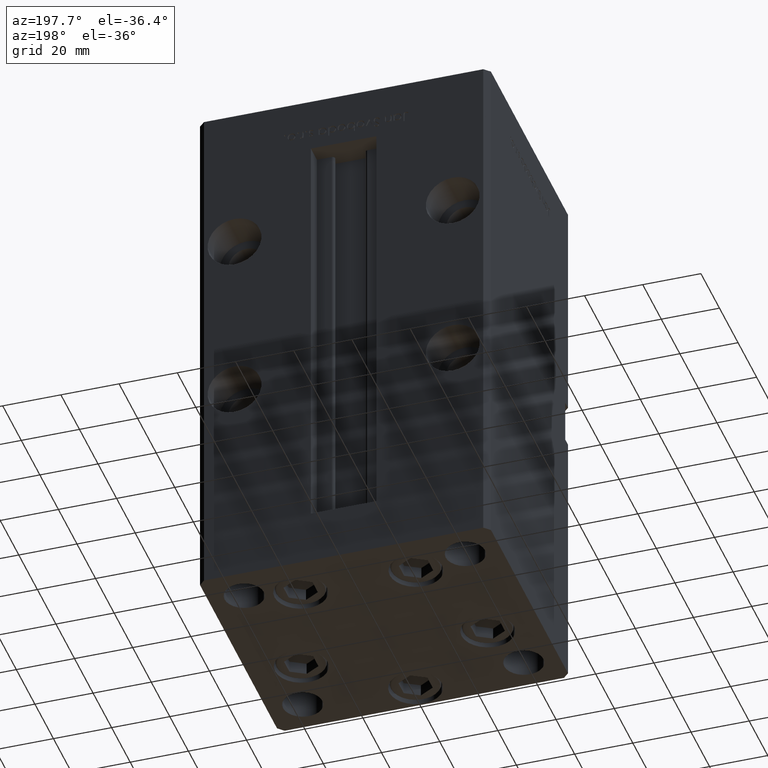
[diagram: clean part render]
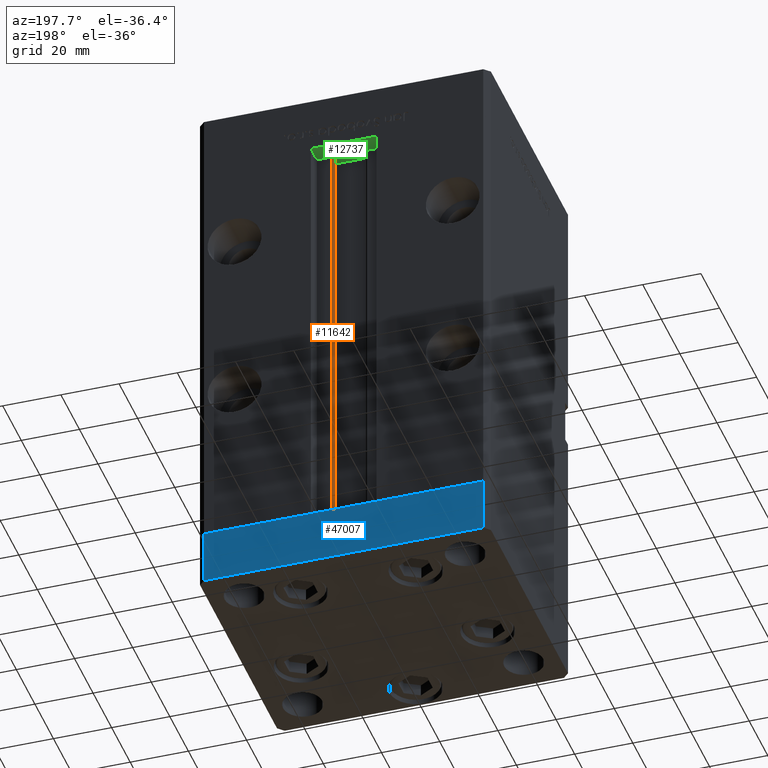
[diagram: same view with three faces highlighted in distinct colors, each labeled with its STEP entity id]
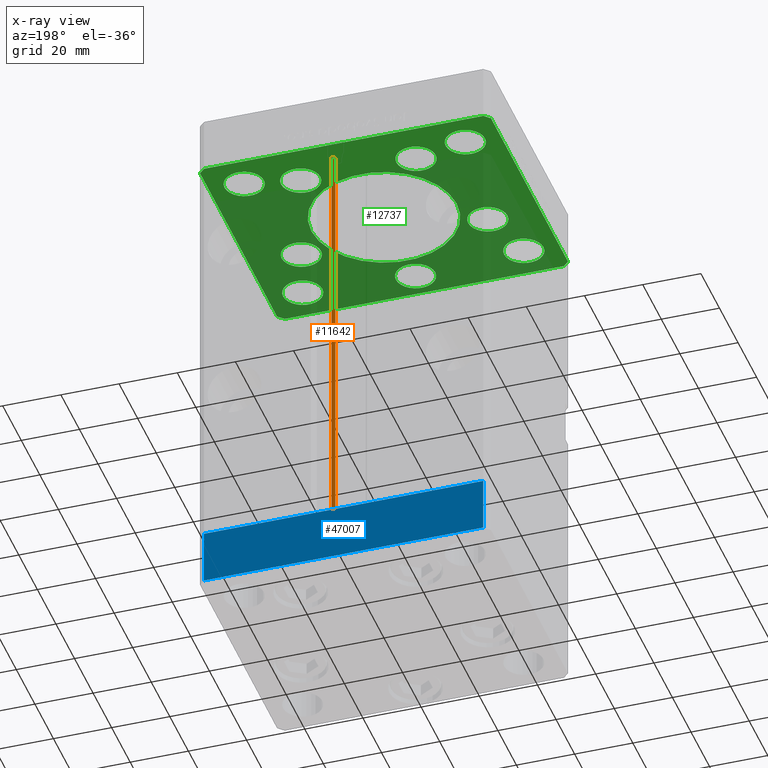
[diagram: x-ray of the same camera — body ghosted, the three highlighted faces saturated]
A machine part, auxiliary view with three faces highlighted in distinct colors.
The next image is the same camera in x-ray (body ghosted, the three faces saturated) — at least one of them is partly hidden behind the body in this view.
Their STEP definitions:

[orange] entity #11642 — the highlighted cylindrical surface (edge-blend (fillet) strip) has radius 0.9333 mm, axis along (0, 0, 1).
#4016 = ORIENTED_EDGE ( 'NONE', *, *, #37850, .T. ) ;
#4766 = DIRECTION ( 'NONE',  ( 0.000000000000000000, 0.000000000000000000, -1.000000000000000000 ) ) ;
#5271 = CARTESIAN_POINT ( 'NONE',  ( 6.183333333333996151, 37.00000000000000000, 0.000000000000000000 ) ) ;
#5412 = CIRCLE ( 'NONE', #49193, 0.9333333333339999260 ) ;
#11284 = VERTEX_POINT ( 'NONE', #11327 ) ;
#11327 = CARTESIAN_POINT ( 'NONE',  ( 6.183333333333996151, 37.00000000000000000, 148.5000000000000000 ) ) ;
#11642 = ADVANCED_FACE ( 'NONE', ( #30754 ), #46908, .T. ) ;
#14159 = CARTESIAN_POINT ( 'NONE',  ( 6.183333333333996151, 37.00000000000000000, 0.000000000000000000 ) ) ;
#14633 = DIRECTION ( 'NONE',  ( -0.000000000000000000, -0.000000000000000000, 1.000000000000000000 ) ) ;
#15650 = ORIENTED_EDGE ( 'NONE', *, *, #41682, .F. ) ;
#17659 = LINE ( 'NONE', #14159, #30551 ) ;
#22427 = LINE ( 'NONE', #31302, #24644 ) ;
#22612 = CARTESIAN_POINT ( 'NONE',  ( 5.375042956467946276, 35.59999999999899245, 148.5000000000000000 ) ) ;
#24638 = CIRCLE ( 'NONE', #48642, 0.9333333333339999260 ) ;
#24644 = VECTOR ( 'NONE', #14633, 1000.000000000000000 ) ;
#25415 = EDGE_CURVE ( 'NONE', #27281, #11284, #5412, .T. ) ;
#26900 = CARTESIAN_POINT ( 'NONE',  ( 6.183333333333996151, 36.06666666666599497, 0.000000000000000000 ) ) ;
#27281 = VERTEX_POINT ( 'NONE', #22612 ) ;
#28117 = EDGE_LOOP ( 'NONE', ( #35070, #15650, #4016, #50537 ) ) ;
#28677 = DIRECTION ( 'NONE',  ( 1.000000000000000000, 0.000000000000000000, 0.000000000000000000 ) ) ;
#30551 = VECTOR ( 'NONE', #34077, 1000.000000000000000 ) ;
#30754 = FACE_OUTER_BOUND ( 'NONE', #28117, .T. ) ;
#31019 = CARTESIAN_POINT ( 'NONE',  ( 6.183333333333996151, 36.06666666666599497, 0.000000000000000000 ) ) ;
#31302 = CARTESIAN_POINT ( 'NONE',  ( 5.375042956467944499, 35.59999999999899245, 0.000000000000000000 ) ) ;
#31950 = AXIS2_PLACEMENT_3D ( 'NONE', #31019, #47440, #51726 ) ;
#34077 = DIRECTION ( 'NONE',  ( -0.000000000000000000, -0.000000000000000000, 1.000000000000000000 ) ) ;
#35070 = ORIENTED_EDGE ( 'NONE', *, *, #39865, .F. ) ;
#37850 = EDGE_CURVE ( 'NONE', #50606, #27281, #22427, .T. ) ;
#39865 = EDGE_CURVE ( 'NONE', #41783, #11284, #17659, .T. ) ;
#41599 = CARTESIAN_POINT ( 'NONE',  ( 6.183333333333996151, 36.06666666666599497, 148.5000000000000000 ) ) ;
#41682 = EDGE_CURVE ( 'NONE', #50606, #41783, #24638, .T. ) ;
#41783 = VERTEX_POINT ( 'NONE', #5271 ) ;
#44628 = CARTESIAN_POINT ( 'NONE',  ( 5.375042956467944499, 35.59999999999899245, 0.000000000000000000 ) ) ;
#46908 = CYLINDRICAL_SURFACE ( 'NONE', #31950, 0.9333333333339999260 ) ;
#47440 = DIRECTION ( 'NONE',  ( -0.000000000000000000, -0.000000000000000000, 1.000000000000000000 ) ) ;
#48642 = AXIS2_PLACEMENT_3D ( 'NONE', #26900, #51340, #28677 ) ;
#48854 = DIRECTION ( 'NONE',  ( 1.000000000000000000, 0.000000000000000000, 0.000000000000000000 ) ) ;
#49193 = AXIS2_PLACEMENT_3D ( 'NONE', #41599, #4766, #48854 ) ;
#50537 = ORIENTED_EDGE ( 'NONE', *, *, #25415, .T. ) ;
#50606 = VERTEX_POINT ( 'NONE', #44628 ) ;
#51340 = DIRECTION ( 'NONE',  ( -0.000000000000000000, -0.000000000000000000, -1.000000000000000000 ) ) ;
#51726 = DIRECTION ( 'NONE',  ( 1.000000000000000000, 0.000000000000000000, 0.000000000000000000 ) ) ;

[blue] entity #47007 — the highlighted planar face has unit normal (-0, 1, 0).
#378 = ORIENTED_EDGE ( 'NONE', *, *, #43446, .F. ) ;
#2927 = FACE_OUTER_BOUND ( 'NONE', #50328, .T. ) ;
#3226 = CARTESIAN_POINT ( 'NONE',  ( 47.99999999999990763, 43.50000000000000000, 0.000000000000000000 ) ) ;
#4743 = CARTESIAN_POINT ( 'NONE',  ( -48.00000000000000711, 43.49999999999996447, -19.00000000000000000 ) ) ;
#4911 = DIRECTION ( 'NONE',  ( 0.000000000000000000, 0.000000000000000000, 1.000000000000000000 ) ) ;
#6416 = ORIENTED_EDGE ( 'NONE', *, *, #40296, .F. ) ;
#6443 = DIRECTION ( 'NONE',  ( 0.000000000000000000, 0.000000000000000000, 1.000000000000000000 ) ) ;
#10715 = DIRECTION ( 'NONE',  ( -1.000000000000000000, -3.614007241618350743E-16, 0.000000000000000000 ) ) ;
#10765 = DIRECTION ( 'NONE',  ( -1.000000000000000000, -3.614007241618350743E-16, 0.000000000000000000 ) ) ;
#10933 = VERTEX_POINT ( 'NONE', #36450 ) ;
#11241 = PLANE ( 'NONE',  #25629 ) ;
#11703 = CARTESIAN_POINT ( 'NONE',  ( 47.99999999999990763, 43.50000000000000000, 0.000000000000000000 ) ) ;
#13939 = DIRECTION ( 'NONE',  ( -1.000000000000000000, -3.614007241618350743E-16, 0.000000000000000000 ) ) ;
#14517 = CARTESIAN_POINT ( 'NONE',  ( 47.99999999999990763, 43.50000000000000000, -19.00000000000000000 ) ) ;
#19569 = DIRECTION ( 'NONE',  ( -3.614007241618350743E-16, 1.000000000000000000, 0.000000000000000000 ) ) ;
#21259 = VERTEX_POINT ( 'NONE', #4743 ) ;
#22118 = VERTEX_POINT ( 'NONE', #43768 ) ;
#23374 = LINE ( 'NONE', #34945, #46057 ) ;
#25554 = VECTOR ( 'NONE', #13939, 1000.000000000000000 ) ;
#25607 = LINE ( 'NONE', #36896, #32189 ) ;
#25629 = AXIS2_PLACEMENT_3D ( 'NONE', #47556, #19569, #10715 ) ;
#27428 = VECTOR ( 'NONE', #10765, 1000.000000000000000 ) ;
#30626 = ORIENTED_EDGE ( 'NONE', *, *, #32612, .T. ) ;
#32134 = LINE ( 'NONE', #11703, #25554 ) ;
#32189 = VECTOR ( 'NONE', #4911, 1000.000000000000000 ) ;
#32612 = EDGE_CURVE ( 'NONE', #21259, #22118, #25607, .T. ) ;
#34945 = CARTESIAN_POINT ( 'NONE',  ( 47.99999999999990763, 43.50000000000000000, -19.00000000000000000 ) ) ;
#35503 = LINE ( 'NONE', #14517, #27428 ) ;
#36450 = CARTESIAN_POINT ( 'NONE',  ( 47.99999999999990763, 43.50000000000000000, -19.00000000000000000 ) ) ;
#36896 = CARTESIAN_POINT ( 'NONE',  ( -48.00000000000000711, 43.49999999999996447, -19.00000000000000000 ) ) ;
#37997 = VERTEX_POINT ( 'NONE', #3226 ) ;
#40296 = EDGE_CURVE ( 'NONE', #10933, #37997, #23374, .T. ) ;
#43446 = EDGE_CURVE ( 'NONE', #37997, #22118, #32134, .T. ) ;
#43768 = CARTESIAN_POINT ( 'NONE',  ( -48.00000000000000711, 43.49999999999996447, 0.000000000000000000 ) ) ;
#45622 = ORIENTED_EDGE ( 'NONE', *, *, #49522, .T. ) ;
#46057 = VECTOR ( 'NONE', #6443, 1000.000000000000000 ) ;
#47007 = ADVANCED_FACE ( 'NONE', ( #2927 ), #11241, .T. ) ;
#47556 = CARTESIAN_POINT ( 'NONE',  ( 47.99999999999990763, 43.50000000000000000, -19.00000000000000000 ) ) ;
#49522 = EDGE_CURVE ( 'NONE', #10933, #21259, #35503, .T. ) ;
#50328 = EDGE_LOOP ( 'NONE', ( #378, #6416, #45622, #30626 ) ) ;

[green] entity #12737 — the highlighted planar face has unit normal (0, 0, 1).
#19 = LINE ( 'NONE', #16394, #33812 ) ;
#120 = CARTESIAN_POINT ( 'NONE',  ( 25.00000000000000000, 0.000000000000000000, -19.00000000000000000 ) ) ;
#170 = EDGE_CURVE ( 'NONE', #17145, #5081, #9966, .T. ) ;
#453 = ORIENTED_EDGE ( 'NONE', *, *, #5256, .F. ) ;
#546 = DIRECTION ( 'NONE',  ( -0.000000000000000000, -0.000000000000000000, -1.000000000000000000 ) ) ;
#585 = VERTEX_POINT ( 'NONE', #16324 ) ;
#793 = DIRECTION ( 'NONE',  ( 1.000000000000000000, 0.000000000000000000, 0.000000000000000000 ) ) ;
#1092 = ORIENTED_EDGE ( 'NONE', *, *, #8129, .F. ) ;
#1174 = EDGE_CURVE ( 'NONE', #14864, #52871, #28233, .T. ) ;
#1311 = ORIENTED_EDGE ( 'NONE', *, *, #170, .F. ) ;
#1316 = DIRECTION ( 'NONE',  ( 1.000000000000000000, 0.000000000000000000, 0.000000000000000000 ) ) ;
#1586 = CARTESIAN_POINT ( 'NONE',  ( 31.25000000000000000, 31.50000000000000000, -19.00000000000000000 ) ) ;
#1657 = CARTESIAN_POINT ( 'NONE',  ( -32.05550741379015989, -11.33333333333332860, -19.00000000000000000 ) ) ;
#1708 = EDGE_LOOP ( 'NONE', ( #10609, #15248 ) ) ;
#1780 = CIRCLE ( 'NONE', #43893, 6.749999999999999112 ) ;
#1912 = CARTESIAN_POINT ( 'NONE',  ( 19.82068048781374969, 27.62499999999998934, -19.00000000000000000 ) ) ;
#2415 = CARTESIAN_POINT ( 'NONE',  ( 38.80550741379015989, -11.33333333333332860, -19.00000000000000000 ) ) ;
#2428 = VERTEX_POINT ( 'NONE', #21727 ) ;
#3118 = CARTESIAN_POINT ( 'NONE',  ( -38.80550741379015989, -11.33333333333332860, -19.00000000000000000 ) ) ;
#3284 = CARTESIAN_POINT ( 'NONE',  ( 38.00000000000000000, 31.50000000000000000, -19.00000000000000000 ) ) ;
#3367 = CARTESIAN_POINT ( 'NONE',  ( 48.00000000000000711, -43.49999999999992184, -19.00000000000000000 ) ) ;
#3496 = CARTESIAN_POINT ( 'NONE',  ( -50.00000000000000711, 41.49999999999999289, -19.00000000000000000 ) ) ;
#3522 = AXIS2_PLACEMENT_3D ( 'NONE', #23131, #15855, #44384 ) ;
#3813 = AXIS2_PLACEMENT_3D ( 'NONE', #11908, #52245, #41217 ) ;
#4058 = CARTESIAN_POINT ( 'NONE',  ( -19.82068048781374969, 27.62499999999998934, -19.00000000000000000 ) ) ;
#4164 = DIRECTION ( 'NONE',  ( 0.7071067811865474617, 0.7071067811865474617, 0.000000000000000000 ) ) ;
#4223 = CARTESIAN_POINT ( 'NONE',  ( 32.05550741379015989, -11.33333333333332860, -19.00000000000000000 ) ) ;
#4284 = CIRCLE ( 'NONE', #34328, 6.749999999999999112 ) ;
#4299 = DIRECTION ( 'NONE',  ( 0.000000000000000000, -0.000000000000000000, -1.000000000000000000 ) ) ;
#5081 = VERTEX_POINT ( 'NONE', #14604 ) ;
#5256 = EDGE_CURVE ( 'NONE', #52900, #32170, #30047, .T. ) ;
#5410 = DIRECTION ( 'NONE',  ( -1.000000000000000000, 0.000000000000000000, 0.000000000000000000 ) ) ;
#5927 = DIRECTION ( 'NONE',  ( 0.000000000000000000, 0.000000000000000000, 1.000000000000000000 ) ) ;
#6057 = EDGE_LOOP ( 'NONE', ( #49906, #30299 ) ) ;
#6240 = CIRCLE ( 'NONE', #12271, 6.749999999999999112 ) ;
#6288 = CARTESIAN_POINT ( 'NONE',  ( 50.00000000000000000, -41.49999999999992895, -19.00000000000000000 ) ) ;
#6997 = AXIS2_PLACEMENT_3D ( 'NONE', #47148, #10840, #27252 ) ;
#7397 = CIRCLE ( 'NONE', #40901, 6.749999999999999112 ) ;
#7450 = EDGE_CURVE ( 'NONE', #14607, #13199, #22368, .T. ) ;
#7629 = ORIENTED_EDGE ( 'NONE', *, *, #7990, .F. ) ;
#7733 = VECTOR ( 'NONE', #26231, 999.9999999999998863 ) ;
#7813 = CIRCLE ( 'NONE', #3522, 6.749999999999999112 ) ;
#7990 = EDGE_CURVE ( 'NONE', #29458, #13462, #1780, .T. ) ;
#8129 = EDGE_CURVE ( 'NONE', #48376, #15848, #7813, .T. ) ;
#8268 = DIRECTION ( 'NONE',  ( -0.000000000000000000, -0.000000000000000000, -1.000000000000000000 ) ) ;
#8335 = DIRECTION ( 'NONE',  ( 8.360113137237620037E-17, -1.000000000000000000, 0.000000000000000000 ) ) ;
#8536 = CARTESIAN_POINT ( 'NONE',  ( 38.00000000000000711, -31.50000000000000711, -19.00000000000000000 ) ) ;
#8581 = EDGE_CURVE ( 'NONE', #21524, #16051, #26733, .T. ) ;
#8868 = DIRECTION ( 'NONE',  ( -1.000000000000000000, 0.000000000000000000, 0.000000000000000000 ) ) ;
#8912 = CARTESIAN_POINT ( 'NONE',  ( -38.00000000000000000, 31.50000000000000000, -19.00000000000000000 ) ) ;
#8973 = VERTEX_POINT ( 'NONE', #40347 ) ;
#9377 = DIRECTION ( 'NONE',  ( 0.000000000000000000, 0.000000000000000000, 1.000000000000000000 ) ) ;
#9401 = FACE_BOUND ( 'NONE', #34958, .T. ) ;
#9608 = CARTESIAN_POINT ( 'NONE',  ( -25.00000000000000000, 3.061616997868383043E-15, -19.00000000000000000 ) ) ;
#9773 = LINE ( 'NONE', #19167, #14048 ) ;
#9873 = DIRECTION ( 'NONE',  ( 0.7071067811865487940, -0.7071067811865463515, 0.000000000000000000 ) ) ;
#9917 = FACE_BOUND ( 'NONE', #6057, .T. ) ;
#9954 = CIRCLE ( 'NONE', #26278, 6.749999999999999112 ) ;
#9966 = LINE ( 'NONE', #18830, #25628 ) ;
#10253 = AXIS2_PLACEMENT_3D ( 'NONE', #18013, #5927, #26109 ) ;
#10354 = LINE ( 'NONE', #18946, #7733 ) ;
#10559 = VECTOR ( 'NONE', #4164, 1000.000000000000114 ) ;
#10579 = EDGE_CURVE ( 'NONE', #52871, #14864, #25053, .T. ) ;
#10609 = ORIENTED_EDGE ( 'NONE', *, *, #39795, .F. ) ;
#10810 = AXIS2_PLACEMENT_3D ( 'NONE', #33874, #25807, #13955 ) ;
#10840 = DIRECTION ( 'NONE',  ( 0.000000000000000000, -0.000000000000000000, -1.000000000000000000 ) ) ;
#11045 = CARTESIAN_POINT ( 'NONE',  ( 50.00000000000000000, -41.49999999999992895, -19.00000000000000000 ) ) ;
#11320 = AXIS2_PLACEMENT_3D ( 'NONE', #21726, #9377, #1316 ) ;
#11908 = CARTESIAN_POINT ( 'NONE',  ( 0.000000000000000000, 0.000000000000000000, -19.00000000000000000 ) ) ;
#12264 = DIRECTION ( 'NONE',  ( 1.000000000000000000, 0.000000000000000000, 0.000000000000000000 ) ) ;
#12271 = AXIS2_PLACEMENT_3D ( 'NONE', #40605, #4299, #793 ) ;
#12501 = EDGE_CURVE ( 'NONE', #31964, #24315, #38298, .T. ) ;
#12534 = VECTOR ( 'NONE', #22552, 1000.000000000000000 ) ;
#12632 = CARTESIAN_POINT ( 'NONE',  ( 38.00000000000000711, -31.50000000000000711, -19.00000000000000000 ) ) ;
#12737 = ADVANCED_FACE ( 'NONE', ( #9917, #9401, #46501, #26329, #42728, #18242, #34660, #47296, #18511, #26872, #15020 ), #31421, .F. ) ;
#12829 = ORIENTED_EDGE ( 'NONE', *, *, #18375, .F. ) ;
#12992 = ORIENTED_EDGE ( 'NONE', *, *, #48030, .F. ) ;
#13199 = VERTEX_POINT ( 'NONE', #17326 ) ;
#13462 = VERTEX_POINT ( 'NONE', #34464 ) ;
#13637 = DIRECTION ( 'NONE',  ( 1.000000000000000000, 0.000000000000000000, 0.000000000000000000 ) ) ;
#13955 = DIRECTION ( 'NONE',  ( -1.000000000000000000, 0.000000000000000000, 0.000000000000000000 ) ) ;
#14028 = ORIENTED_EDGE ( 'NONE', *, *, #7450, .T. ) ;
#14048 = VECTOR ( 'NONE', #26179, 1000.000000000000000 ) ;
#14428 = EDGE_CURVE ( 'NONE', #32170, #52900, #28605, .T. ) ;
#14604 = CARTESIAN_POINT ( 'NONE',  ( 48.00000000000000711, -43.49999999999992184, -19.00000000000000000 ) ) ;
#14607 = VERTEX_POINT ( 'NONE', #37657 ) ;
#14864 = VERTEX_POINT ( 'NONE', #40488 ) ;
#14914 = CARTESIAN_POINT ( 'NONE',  ( -48.00000000000000711, -43.50000000000002842, -19.00000000000000000 ) ) ;
#15020 = FACE_BOUND ( 'NONE', #36296, .T. ) ;
#15248 = ORIENTED_EDGE ( 'NONE', *, *, #34312, .F. ) ;
#15367 = AXIS2_PLACEMENT_3D ( 'NONE', #41037, #36729, #12264 ) ;
#15848 = VERTEX_POINT ( 'NONE', #2415 ) ;
#15855 = DIRECTION ( 'NONE',  ( 0.000000000000000000, -0.000000000000000000, -1.000000000000000000 ) ) ;
#16051 = VERTEX_POINT ( 'NONE', #9608 ) ;
#16324 = CARTESIAN_POINT ( 'NONE',  ( -13.07068048781375325, 27.62499999999998934, -19.00000000000000000 ) ) ;
#16394 = CARTESIAN_POINT ( 'NONE',  ( -50.00000000000000711, 41.49999999999999289, -19.00000000000000000 ) ) ;
#16545 = VECTOR ( 'NONE', #30473, 1000.000000000000000 ) ;
#16872 = CARTESIAN_POINT ( 'NONE',  ( -25.30550741379015989, -11.33333333333332860, -19.00000000000000000 ) ) ;
#17145 = VERTEX_POINT ( 'NONE', #14914 ) ;
#17203 = ORIENTED_EDGE ( 'NONE', *, *, #1174, .F. ) ;
#17326 = CARTESIAN_POINT ( 'NONE',  ( -31.25000000000000711, -31.50000000000000711, -19.00000000000000000 ) ) ;
#17545 = VERTEX_POINT ( 'NONE', #33044 ) ;
#17738 = EDGE_LOOP ( 'NONE', ( #40929, #50354, #39752, #50538, #33517, #51414, #12829, #1311 ) ) ;
#18013 = CARTESIAN_POINT ( 'NONE',  ( 38.00000000000000000, 31.50000000000000000, -19.00000000000000000 ) ) ;
#18242 = FACE_BOUND ( 'NONE', #1708, .T. ) ;
#18247 = CARTESIAN_POINT ( 'NONE',  ( 47.99999999999999289, 43.50000000000000000, -19.00000000000000000 ) ) ;
#18276 = DIRECTION ( 'NONE',  ( -0.000000000000000000, -0.000000000000000000, -1.000000000000000000 ) ) ;
#18300 = DIRECTION ( 'NONE',  ( 1.000000000000000000, 0.000000000000000000, 0.000000000000000000 ) ) ;
#18375 = EDGE_CURVE ( 'NONE', #5081, #31964, #47542, .T. ) ;
#18511 = FACE_OUTER_BOUND ( 'NONE', #17738, .T. ) ;
#18598 = EDGE_CURVE ( 'NONE', #25193, #51264, #9773, .T. ) ;
#18654 = VERTEX_POINT ( 'NONE', #34506 ) ;
#18778 = AXIS2_PLACEMENT_3D ( 'NONE', #12632, #546, #8868 ) ;
#18796 = ORIENTED_EDGE ( 'NONE', *, *, #14428, .F. ) ;
#18830 = CARTESIAN_POINT ( 'NONE',  ( -48.00000000000000711, -43.50000000000002842, -19.00000000000000000 ) ) ;
#18946 = CARTESIAN_POINT ( 'NONE',  ( 50.00000000000000000, 41.50000000000000711, -19.00000000000000000 ) ) ;
#19167 = CARTESIAN_POINT ( 'NONE',  ( -48.00000000000000000, 43.49999999999997158, -19.00000000000000000 ) ) ;
#19929 = EDGE_LOOP ( 'NONE', ( #26908, #1092 ) ) ;
#20000 = EDGE_LOOP ( 'NONE', ( #24154, #49966 ) ) ;
#20624 = DIRECTION ( 'NONE',  ( -1.000000000000000000, 0.000000000000000000, 0.000000000000000000 ) ) ;
#20837 = EDGE_CURVE ( 'NONE', #43484, #18654, #34664, .T. ) ;
#21524 = VERTEX_POINT ( 'NONE', #120 ) ;
#21726 = CARTESIAN_POINT ( 'NONE',  ( -38.00000000000000711, -31.50000000000000711, -19.00000000000000000 ) ) ;
#21727 = CARTESIAN_POINT ( 'NONE',  ( -6.749999999999999112, -34.00000000000000000, -19.00000000000000000 ) ) ;
#22165 = EDGE_CURVE ( 'NONE', #15848, #48376, #43443, .T. ) ;
#22368 = CIRCLE ( 'NONE', #43001, 6.749999999999999112 ) ;
#22552 = DIRECTION ( 'NONE',  ( -1.000000000000000000, -2.891205793294678326E-16, 0.000000000000000000 ) ) ;
#22567 = CARTESIAN_POINT ( 'NONE',  ( 0.000000000000000000, -34.00000000000000000, -19.00000000000000000 ) ) ;
#22570 = AXIS2_PLACEMENT_3D ( 'NONE', #43621, #38512, #26678 ) ;
#22591 = DIRECTION ( 'NONE',  ( 0.000000000000000000, -0.000000000000000000, -1.000000000000000000 ) ) ;
#23029 = EDGE_CURVE ( 'NONE', #13199, #14607, #49114, .T. ) ;
#23131 = CARTESIAN_POINT ( 'NONE',  ( 32.05550741379015989, -11.33333333333332860, -19.00000000000000000 ) ) ;
#24154 = ORIENTED_EDGE ( 'NONE', *, *, #34444, .F. ) ;
#24315 = VERTEX_POINT ( 'NONE', #39133 ) ;
#24729 = VERTEX_POINT ( 'NONE', #31525 ) ;
#24877 = CARTESIAN_POINT ( 'NONE',  ( -44.75000000000000000, 31.50000000000000000, -19.00000000000000000 ) ) ;
#25025 = EDGE_CURVE ( 'NONE', #13462, #29458, #6240, .T. ) ;
#25053 = CIRCLE ( 'NONE', #42239, 6.749999999999999112 ) ;
#25193 = VERTEX_POINT ( 'NONE', #43518 ) ;
#25442 = AXIS2_PLACEMENT_3D ( 'NONE', #22567, #37922, #30362 ) ;
#25628 = VECTOR ( 'NONE', #30391, 1000.000000000000000 ) ;
#25807 = DIRECTION ( 'NONE',  ( -0.000000000000000000, -0.000000000000000000, -1.000000000000000000 ) ) ;
#26109 = DIRECTION ( 'NONE',  ( 1.000000000000000000, 0.000000000000000000, 0.000000000000000000 ) ) ;
#26179 = DIRECTION ( 'NONE',  ( -0.7071067811865536790, -0.7071067811865414665, 0.000000000000000000 ) ) ;
#26231 = DIRECTION ( 'NONE',  ( -0.7071067811865512365, 0.7071067811865439090, 0.000000000000000000 ) ) ;
#26240 = AXIS2_PLACEMENT_3D ( 'NONE', #4223, #41319, #36488 ) ;
#26278 = AXIS2_PLACEMENT_3D ( 'NONE', #4058, #27986, #28514 ) ;
#26285 = LINE ( 'NONE', #47787, #45215 ) ;
#26329 = FACE_BOUND ( 'NONE', #19929, .T. ) ;
#26678 = DIRECTION ( 'NONE',  ( 1.000000000000000000, 0.000000000000000000, 0.000000000000000000 ) ) ;
#26733 = CIRCLE ( 'NONE', #6997, 25.00000000000000000 ) ;
#26872 = FACE_BOUND ( 'NONE', #20000, .T. ) ;
#26908 = ORIENTED_EDGE ( 'NONE', *, *, #22165, .F. ) ;
#27039 = DIRECTION ( 'NONE',  ( 1.000000000000000000, 0.000000000000000000, 0.000000000000000000 ) ) ;
#27252 = DIRECTION ( 'NONE',  ( 1.000000000000000000, 0.000000000000000000, 0.000000000000000000 ) ) ;
#27338 = ORIENTED_EDGE ( 'NONE', *, *, #49436, .T. ) ;
#27933 = CARTESIAN_POINT ( 'NONE',  ( 31.25000000000000711, -31.50000000000000711, -19.00000000000000000 ) ) ;
#27986 = DIRECTION ( 'NONE',  ( 0.000000000000000000, -0.000000000000000000, -1.000000000000000000 ) ) ;
#28233 = CIRCLE ( 'NONE', #18778, 6.749999999999999112 ) ;
#28514 = DIRECTION ( 'NONE',  ( 1.000000000000000000, 0.000000000000000000, 0.000000000000000000 ) ) ;
#28605 = CIRCLE ( 'NONE', #22570, 6.749999999999999112 ) ;
#28671 = EDGE_CURVE ( 'NONE', #51264, #49741, #19, .T. ) ;
#29053 = EDGE_CURVE ( 'NONE', #16051, #21524, #44151, .T. ) ;
#29106 = ORIENTED_EDGE ( 'NONE', *, *, #10579, .F. ) ;
#29458 = VERTEX_POINT ( 'NONE', #50519 ) ;
#30047 = CIRCLE ( 'NONE', #40361, 6.749999999999999112 ) ;
#30299 = ORIENTED_EDGE ( 'NONE', *, *, #29053, .F. ) ;
#30362 = DIRECTION ( 'NONE',  ( 1.000000000000000000, 0.000000000000000000, 0.000000000000000000 ) ) ;
#30391 = DIRECTION ( 'NONE',  ( 1.000000000000000000, 1.156482317317871331E-15, 0.000000000000000000 ) ) ;
#30473 = DIRECTION ( 'NONE',  ( 0.000000000000000000, 1.000000000000000000, 0.000000000000000000 ) ) ;
#30832 = ORIENTED_EDGE ( 'NONE', *, *, #23029, .T. ) ;
#31119 = CARTESIAN_POINT ( 'NONE',  ( -50.00000000000000000, -41.50000000000004263, -19.00000000000000000 ) ) ;
#31421 = PLANE ( 'NONE',  #45743 ) ;
#31432 = ORIENTED_EDGE ( 'NONE', *, *, #36061, .F. ) ;
#31525 = CARTESIAN_POINT ( 'NONE',  ( 6.749999999999999112, -34.00000000000000000, -19.00000000000000000 ) ) ;
#31964 = VERTEX_POINT ( 'NONE', #11045 ) ;
#32170 = VERTEX_POINT ( 'NONE', #3118 ) ;
#33044 = CARTESIAN_POINT ( 'NONE',  ( -31.25000000000000000, 31.50000000000000000, -19.00000000000000000 ) ) ;
#33517 = ORIENTED_EDGE ( 'NONE', *, *, #50932, .F. ) ;
#33812 = VECTOR ( 'NONE', #8335, 1000.000000000000000 ) ;
#33874 = CARTESIAN_POINT ( 'NONE',  ( -38.00000000000000000, 31.50000000000000000, -19.00000000000000000 ) ) ;
#33911 = EDGE_CURVE ( 'NONE', #47789, #25193, #34136, .T. ) ;
#34136 = LINE ( 'NONE', #18247, #12534 ) ;
#34297 = ORIENTED_EDGE ( 'NONE', *, *, #20837, .T. ) ;
#34312 = EDGE_CURVE ( 'NONE', #8973, #585, #9954, .T. ) ;
#34328 = AXIS2_PLACEMENT_3D ( 'NONE', #8912, #18276, #5410 ) ;
#34444 = EDGE_CURVE ( 'NONE', #17545, #43578, #38294, .T. ) ;
#34464 = CARTESIAN_POINT ( 'NONE',  ( 26.57068048781374969, 27.62499999999998934, -19.00000000000000000 ) ) ;
#34506 = CARTESIAN_POINT ( 'NONE',  ( 44.75000000000000000, 31.50000000000000000, -19.00000000000000000 ) ) ;
#34660 = FACE_BOUND ( 'NONE', #35545, .T. ) ;
#34664 = CIRCLE ( 'NONE', #50993, 6.749999999999999112 ) ;
#34958 = EDGE_LOOP ( 'NONE', ( #453, #18796 ) ) ;
#35192 = DIRECTION ( 'NONE',  ( 1.000000000000000000, 0.000000000000000000, 0.000000000000000000 ) ) ;
#35462 = DIRECTION ( 'NONE',  ( -0.000000000000000000, 0.000000000000000000, 1.000000000000000000 ) ) ;
#35545 = EDGE_LOOP ( 'NONE', ( #27338, #34297 ) ) ;
#36061 = EDGE_CURVE ( 'NONE', #2428, #24729, #47780, .T. ) ;
#36080 = DIRECTION ( 'NONE',  ( 1.000000000000000000, 0.000000000000000000, 0.000000000000000000 ) ) ;
#36296 = EDGE_LOOP ( 'NONE', ( #17203, #29106 ) ) ;
#36488 = DIRECTION ( 'NONE',  ( 1.000000000000000000, 0.000000000000000000, 0.000000000000000000 ) ) ;
#36729 = DIRECTION ( 'NONE',  ( 0.000000000000000000, -0.000000000000000000, -1.000000000000000000 ) ) ;
#36855 = CIRCLE ( 'NONE', #10253, 6.749999999999999112 ) ;
#37657 = CARTESIAN_POINT ( 'NONE',  ( -44.75000000000000711, -31.50000000000000711, -19.00000000000000000 ) ) ;
#37922 = DIRECTION ( 'NONE',  ( 0.000000000000000000, -0.000000000000000000, -1.000000000000000000 ) ) ;
#38294 = CIRCLE ( 'NONE', #10810, 6.749999999999999112 ) ;
#38298 = LINE ( 'NONE', #6288, #16545 ) ;
#38512 = DIRECTION ( 'NONE',  ( 0.000000000000000000, -0.000000000000000000, -1.000000000000000000 ) ) ;
#38906 = DIRECTION ( 'NONE',  ( 0.000000000000000000, -0.000000000000000000, -1.000000000000000000 ) ) ;
#39133 = CARTESIAN_POINT ( 'NONE',  ( 50.00000000000000000, 41.50000000000000711, -19.00000000000000000 ) ) ;
#39752 = ORIENTED_EDGE ( 'NONE', *, *, #18598, .F. ) ;
#39795 = EDGE_CURVE ( 'NONE', #585, #8973, #7397, .T. ) ;
#40347 = CARTESIAN_POINT ( 'NONE',  ( -26.57068048781375325, 27.62499999999998934, -19.00000000000000000 ) ) ;
#40361 = AXIS2_PLACEMENT_3D ( 'NONE', #1657, #51100, #18300 ) ;
#40488 = CARTESIAN_POINT ( 'NONE',  ( 44.75000000000000711, -31.50000000000000711, -19.00000000000000000 ) ) ;
#40605 = CARTESIAN_POINT ( 'NONE',  ( 19.82068048781374969, 27.62499999999998934, -19.00000000000000000 ) ) ;
#40674 = EDGE_CURVE ( 'NONE', #49741, #17145, #26285, .T. ) ;
#40901 = AXIS2_PLACEMENT_3D ( 'NONE', #50720, #38906, #13637 ) ;
#40929 = ORIENTED_EDGE ( 'NONE', *, *, #40674, .F. ) ;
#41037 = CARTESIAN_POINT ( 'NONE',  ( 0.000000000000000000, -34.00000000000000000, -19.00000000000000000 ) ) ;
#41217 = DIRECTION ( 'NONE',  ( 1.000000000000000000, 0.000000000000000000, 0.000000000000000000 ) ) ;
#41319 = DIRECTION ( 'NONE',  ( 0.000000000000000000, -0.000000000000000000, -1.000000000000000000 ) ) ;
#42239 = AXIS2_PLACEMENT_3D ( 'NONE', #8536, #8268, #20624 ) ;
#42728 = FACE_BOUND ( 'NONE', #45517, .T. ) ;
#43001 = AXIS2_PLACEMENT_3D ( 'NONE', #46938, #43169, #27039 ) ;
#43169 = DIRECTION ( 'NONE',  ( 0.000000000000000000, 0.000000000000000000, 1.000000000000000000 ) ) ;
#43443 = CIRCLE ( 'NONE', #26240, 6.749999999999999112 ) ;
#43484 = VERTEX_POINT ( 'NONE', #1586 ) ;
#43518 = CARTESIAN_POINT ( 'NONE',  ( -48.00000000000000000, 43.49999999999997158, -19.00000000000000000 ) ) ;
#43578 = VERTEX_POINT ( 'NONE', #24877 ) ;
#43585 = DIRECTION ( 'NONE',  ( 1.000000000000000000, 0.000000000000000000, 0.000000000000000000 ) ) ;
#43621 = CARTESIAN_POINT ( 'NONE',  ( -32.05550741379015989, -11.33333333333332860, -19.00000000000000000 ) ) ;
#43893 = AXIS2_PLACEMENT_3D ( 'NONE', #1912, #22591, #43585 ) ;
#44151 = CIRCLE ( 'NONE', #3813, 25.00000000000000000 ) ;
#44384 = DIRECTION ( 'NONE',  ( 1.000000000000000000, 0.000000000000000000, 0.000000000000000000 ) ) ;
#44756 = CARTESIAN_POINT ( 'NONE',  ( 25.30550741379015989, -11.33333333333332860, -19.00000000000000000 ) ) ;
#45215 = VECTOR ( 'NONE', #9873, 1000.000000000000000 ) ;
#45517 = EDGE_LOOP ( 'NONE', ( #51210, #7629 ) ) ;
#45743 = AXIS2_PLACEMENT_3D ( 'NONE', #47832, #35462, #35192 ) ;
#46501 = FACE_BOUND ( 'NONE', #50588, .T. ) ;
#46938 = CARTESIAN_POINT ( 'NONE',  ( -38.00000000000000711, -31.50000000000000711, -19.00000000000000000 ) ) ;
#47148 = CARTESIAN_POINT ( 'NONE',  ( 0.000000000000000000, 0.000000000000000000, -19.00000000000000000 ) ) ;
#47250 = CARTESIAN_POINT ( 'NONE',  ( 47.99999999999999289, 43.50000000000000000, -19.00000000000000000 ) ) ;
#47296 = FACE_BOUND ( 'NONE', #48918, .T. ) ;
#47542 = LINE ( 'NONE', #3367, #10559 ) ;
#47780 = CIRCLE ( 'NONE', #25442, 6.749999999999999112 ) ;
#47787 = CARTESIAN_POINT ( 'NONE',  ( -50.00000000000000000, -41.50000000000004263, -19.00000000000000000 ) ) ;
#47789 = VERTEX_POINT ( 'NONE', #47250 ) ;
#47832 = CARTESIAN_POINT ( 'NONE',  ( 0.000000000000000000, 0.000000000000000000, -19.00000000000000000 ) ) ;
#48030 = EDGE_CURVE ( 'NONE', #24729, #2428, #52283, .T. ) ;
#48177 = DIRECTION ( 'NONE',  ( 0.000000000000000000, 0.000000000000000000, 1.000000000000000000 ) ) ;
#48376 = VERTEX_POINT ( 'NONE', #44756 ) ;
#48918 = EDGE_LOOP ( 'NONE', ( #30832, #14028 ) ) ;
#49114 = CIRCLE ( 'NONE', #11320, 6.749999999999999112 ) ;
#49436 = EDGE_CURVE ( 'NONE', #18654, #43484, #36855, .T. ) ;
#49741 = VERTEX_POINT ( 'NONE', #31119 ) ;
#49906 = ORIENTED_EDGE ( 'NONE', *, *, #8581, .F. ) ;
#49966 = ORIENTED_EDGE ( 'NONE', *, *, #51144, .F. ) ;
#50354 = ORIENTED_EDGE ( 'NONE', *, *, #28671, .F. ) ;
#50519 = CARTESIAN_POINT ( 'NONE',  ( 13.07068048781375147, 27.62499999999998934, -19.00000000000000000 ) ) ;
#50538 = ORIENTED_EDGE ( 'NONE', *, *, #33911, .F. ) ;
#50588 = EDGE_LOOP ( 'NONE', ( #12992, #31432 ) ) ;
#50720 = CARTESIAN_POINT ( 'NONE',  ( -19.82068048781374969, 27.62499999999998934, -19.00000000000000000 ) ) ;
#50932 = EDGE_CURVE ( 'NONE', #24315, #47789, #10354, .T. ) ;
#50993 = AXIS2_PLACEMENT_3D ( 'NONE', #3284, #48177, #36080 ) ;
#51100 = DIRECTION ( 'NONE',  ( 0.000000000000000000, -0.000000000000000000, -1.000000000000000000 ) ) ;
#51144 = EDGE_CURVE ( 'NONE', #43578, #17545, #4284, .T. ) ;
#51210 = ORIENTED_EDGE ( 'NONE', *, *, #25025, .F. ) ;
#51264 = VERTEX_POINT ( 'NONE', #3496 ) ;
#51414 = ORIENTED_EDGE ( 'NONE', *, *, #12501, .F. ) ;
#52245 = DIRECTION ( 'NONE',  ( 0.000000000000000000, -0.000000000000000000, -1.000000000000000000 ) ) ;
#52283 = CIRCLE ( 'NONE', #15367, 6.749999999999999112 ) ;
#52871 = VERTEX_POINT ( 'NONE', #27933 ) ;
#52900 = VERTEX_POINT ( 'NONE', #16872 ) ;